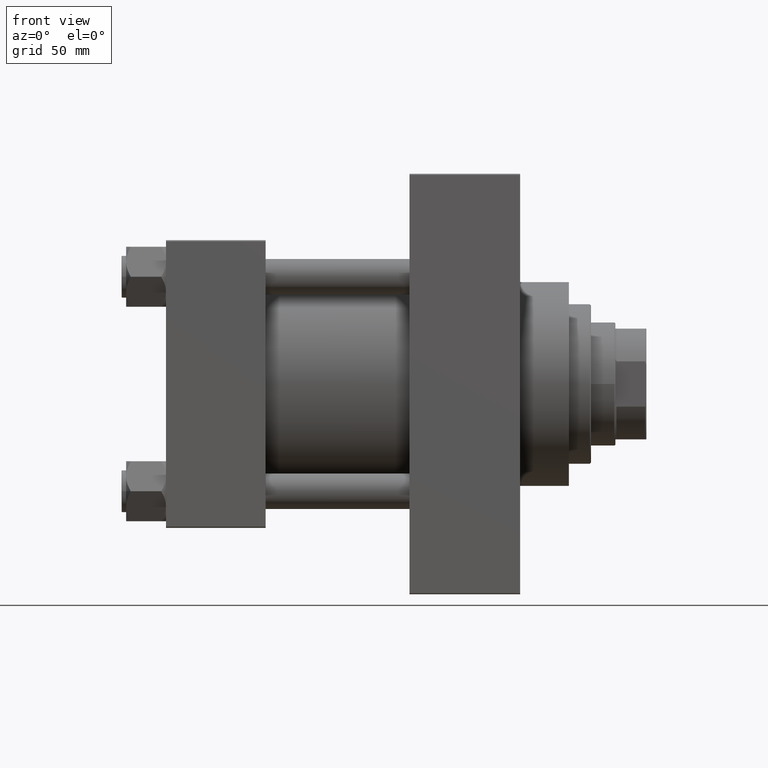
[diagram: clean part render]
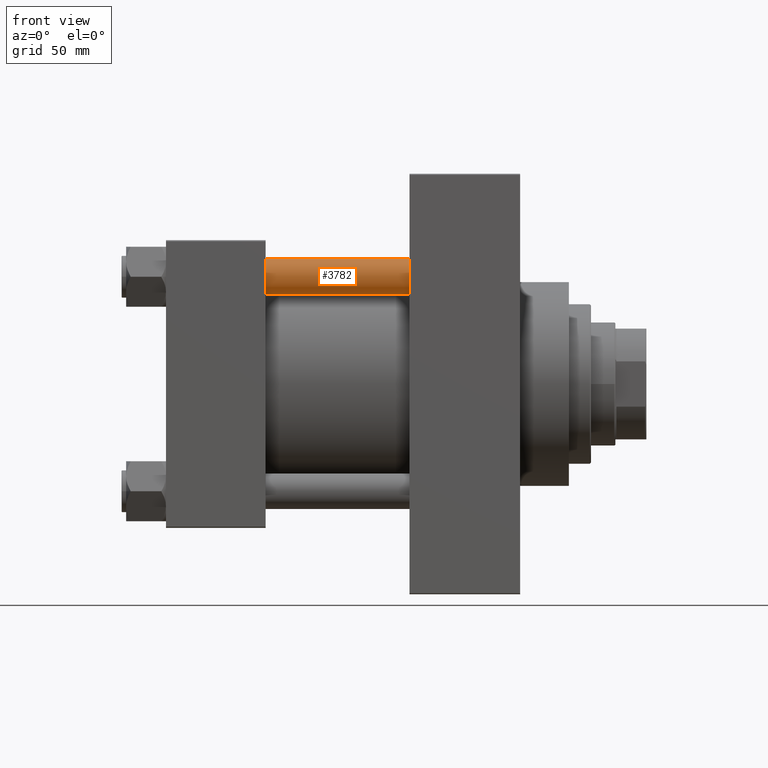
[diagram: same view with one face highlighted and labeled with its STEP entity id]
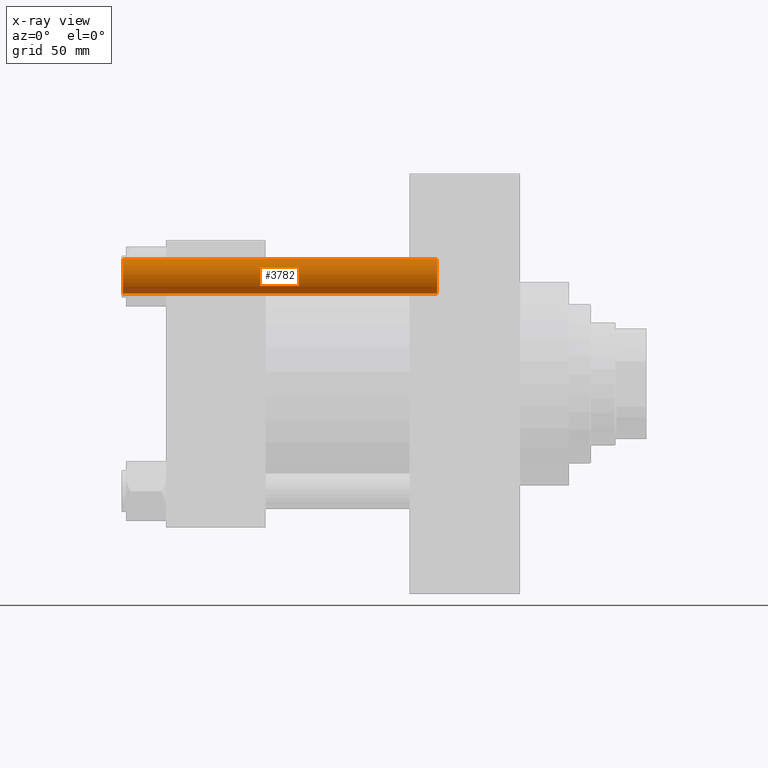
[diagram: x-ray of the same camera — body ghosted, the highlighted face saturated]
A machine part, front view. The second image highlights one B-rep face of the part: STEP entity #3782.
The next image is the same camera in x-ray: the body ghosted, the highlighted face saturated — about 0% of this face is hidden behind the body in this view.
In plain terms, the highlighted cylindrical surface (edge-blend (fillet) strip) has radius 8 mm, axis along (1, 0, 0).
Its self-contained STEP definition (entity closure, byte-faithful):
#149 = CARTESIAN_POINT ( 'NONE',  ( 8.000000000000000000, 9.797174393178825657E-16, 142.4999999999999716 ) ) ;
#708 = CARTESIAN_POINT ( 'NONE',  ( 8.000000000000000000, 9.797174393178825657E-16, 143.0000000000000000 ) ) ;
#2430 = CARTESIAN_POINT ( 'NONE',  ( -8.000000000000000000, 0.000000000000000000, 143.0000000000000000 ) ) ;
#3782 = ADVANCED_FACE ( 'NONE', ( #14235 ), #28933, .T. ) ;
#4407 = EDGE_CURVE ( 'NONE', #37935, #8914, #16669, .T. ) ;
#4567 = DIRECTION ( 'NONE',  ( -0.000000000000000000, -0.000000000000000000, -1.000000000000000000 ) ) ;
#4805 = ORIENTED_EDGE ( 'NONE', *, *, #45771, .T. ) ;
#5047 = LINE ( 'NONE', #708, #24162 ) ;
#8914 = VERTEX_POINT ( 'NONE', #41731 ) ;
#9923 = CIRCLE ( 'NONE', #36921, 8.000000000000000000 ) ;
#10828 = EDGE_CURVE ( 'NONE', #46634, #45808, #5047, .T. ) ;
#13881 = ORIENTED_EDGE ( 'NONE', *, *, #10828, .T. ) ;
#14235 = FACE_OUTER_BOUND ( 'NONE', #24291, .T. ) ;
#14479 = DIRECTION ( 'NONE',  ( -0.000000000000000000, -0.000000000000000000, -1.000000000000000000 ) ) ;
#16669 = LINE ( 'NONE', #2430, #46784 ) ;
#16940 = DIRECTION ( 'NONE',  ( 1.000000000000000000, 0.000000000000000000, 0.000000000000000000 ) ) ;
#18551 = DIRECTION ( 'NONE',  ( -0.000000000000000000, -0.000000000000000000, 1.000000000000000000 ) ) ;
#19555 = ORIENTED_EDGE ( 'NONE', *, *, #37474, .T. ) ;
#20343 = ORIENTED_EDGE ( 'NONE', *, *, #4407, .F. ) ;
#23710 = DIRECTION ( 'NONE',  ( 0.000000000000000000, 0.000000000000000000, -1.000000000000000000 ) ) ;
#24162 = VECTOR ( 'NONE', #4567, 1000.000000000000000 ) ;
#24291 = EDGE_LOOP ( 'NONE', ( #4805, #13881, #19555, #20343 ) ) ;
#25598 = CARTESIAN_POINT ( 'NONE',  ( -8.000000000000000000, 0.000000000000000000, 142.4999999999999716 ) ) ;
#28933 = CYLINDRICAL_SURFACE ( 'NONE', #34449, 8.000000000000000000 ) ;
#30098 = DIRECTION ( 'NONE',  ( 1.000000000000000000, 0.000000000000000000, 0.000000000000000000 ) ) ;
#32910 = AXIS2_PLACEMENT_3D ( 'NONE', #41448, #18551, #30098 ) ;
#34449 = AXIS2_PLACEMENT_3D ( 'NONE', #43679, #14479, #43927 ) ;
#34467 = CIRCLE ( 'NONE', #32910, 8.000000000000000000 ) ;
#36921 = AXIS2_PLACEMENT_3D ( 'NONE', #46162, #23710, #16940 ) ;
#37474 = EDGE_CURVE ( 'NONE', #45808, #8914, #34467, .T. ) ;
#37935 = VERTEX_POINT ( 'NONE', #25598 ) ;
#41448 = CARTESIAN_POINT ( 'NONE',  ( 0.000000000000000000, 0.000000000000000000, 0.4999999999999726885 ) ) ;
#41731 = CARTESIAN_POINT ( 'NONE',  ( -8.000000000000000000, 0.000000000000000000, 0.4999999999999726885 ) ) ;
#42729 = DIRECTION ( 'NONE',  ( -0.000000000000000000, -0.000000000000000000, -1.000000000000000000 ) ) ;
#43679 = CARTESIAN_POINT ( 'NONE',  ( 0.000000000000000000, 0.000000000000000000, 143.0000000000000000 ) ) ;
#43927 = DIRECTION ( 'NONE',  ( -1.000000000000000000, 0.000000000000000000, 0.000000000000000000 ) ) ;
#45681 = CARTESIAN_POINT ( 'NONE',  ( 8.000000000000000000, 9.797174393178825657E-16, 0.4999999999999726885 ) ) ;
#45771 = EDGE_CURVE ( 'NONE', #37935, #46634, #9923, .T. ) ;
#45808 = VERTEX_POINT ( 'NONE', #45681 ) ;
#46162 = CARTESIAN_POINT ( 'NONE',  ( 0.000000000000000000, 0.000000000000000000, 142.4999999999999716 ) ) ;
#46634 = VERTEX_POINT ( 'NONE', #149 ) ;
#46784 = VECTOR ( 'NONE', #42729, 1000.000000000000000 ) ;